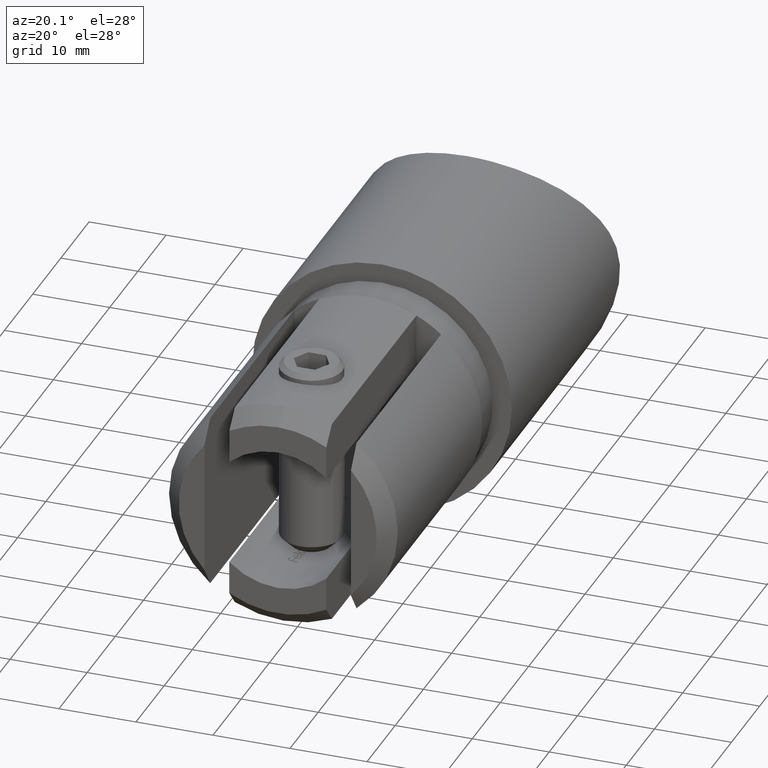
[diagram: clean part render]
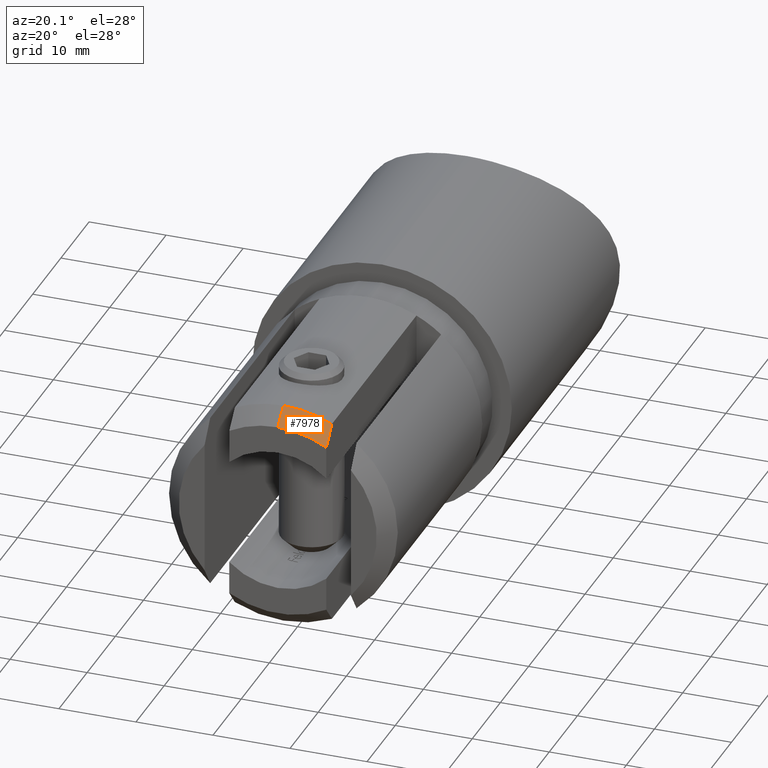
[diagram: same view with one face highlighted and labeled with its STEP entity id]
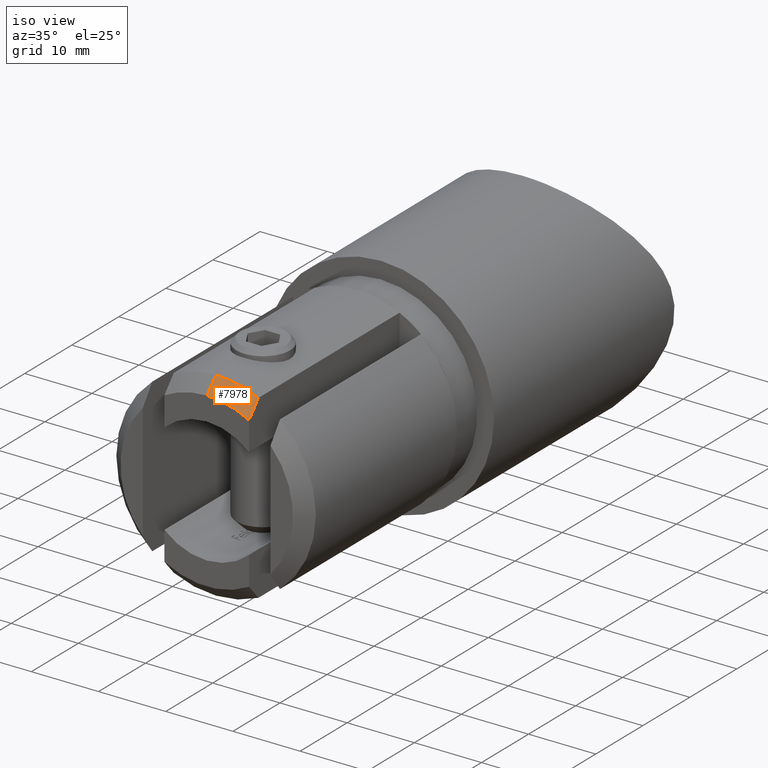
[diagram: same view with one face highlighted and labeled with its STEP entity id]
A machine part, auxiliary view. The second image highlights one B-rep face of the part: STEP entity #7978.
A second angle (iso view) of the same face is appended — the face is thin or edge-on in the first view.
In plain terms, the highlighted conical surface has half-angle 45 deg.
Its self-contained STEP definition (entity closure, byte-faithful):
#1083 = B_SPLINE_CURVE_WITH_KNOTS ( 'NONE', 3,
 ( #4109, #7334, #7241, #13936 ),
 .UNSPECIFIED., .F., .F.,
 ( 4, 4 ),
 ( 0.02580683187805100200, 0.02881553517371720700 ),
 .UNSPECIFIED. ) ;
#1609 = VERTEX_POINT ( 'NONE', #10870 ) ;
#1762 = EDGE_CURVE ( 'NONE', #1609, #7572, #7307, .T. ) ;
#2405 = DIRECTION ( 'NONE',  ( 0.0000000000000000000, 0.0000000000000000000, -1.000000000000000000 ) ) ;
#2443 = CONICAL_SURFACE ( 'NONE', #2950, 12.85000000000000000, 0.7853981633974466100 ) ;
#2950 = AXIS2_PLACEMENT_3D ( 'NONE', #3788, #8186, #6627 ) ;
#3101 = CARTESIAN_POINT ( 'NONE',  ( 0.0000000000000000000, -37.00000000000000000, 12.85000000000000000 ) ) ;
#3788 = CARTESIAN_POINT ( 'NONE',  ( 0.0000000000000000000, -37.00000000000000000, 0.0000000000000000000 ) ) ;
#4109 = CARTESIAN_POINT ( 'NONE',  ( 6.299999999999999800, -34.99999999999999300, 13.44739751773555800 ) ) ;
#4516 = CIRCLE ( 'NONE', #5070, 12.85000000000000000 ) ;
#4733 = CARTESIAN_POINT ( 'NONE',  ( 0.0000000000000000000, -37.00000000000000000, 0.0000000000000000000 ) ) ;
#5070 = AXIS2_PLACEMENT_3D ( 'NONE', #4733, #12412, #2405 ) ;
#5106 = EDGE_CURVE ( 'NONE', #7572, #10464, #1083, .T. ) ;
#5379 = ORIENTED_EDGE ( 'NONE', *, *, #5106, .F. ) ;
#5515 = ORIENTED_EDGE ( 'NONE', *, *, #1762, .F. ) ;
#5931 = EDGE_LOOP ( 'NONE', ( #11196, #12812, #5379, #5515 ) ) ;
#6014 = CARTESIAN_POINT ( 'NONE',  ( 0.0000000000000000000, -37.00000000000000000, 12.85000000000000000 ) ) ;
#6627 = DIRECTION ( 'NONE',  ( 0.0000000000000000000, 0.0000000000000000000, 1.000000000000000000 ) ) ;
#7241 = CARTESIAN_POINT ( 'NONE',  ( 6.299999999999999800, -36.34101532155754900, 11.95575501971407200 ) ) ;
#7307 = CIRCLE ( 'NONE', #8677, 14.85000000000000100 ) ;
#7334 = CARTESIAN_POINT ( 'NONE',  ( 6.299999999999999800, -35.67320264994762600, 12.70397788292981500 ) ) ;
#7572 = VERTEX_POINT ( 'NONE', #11963 ) ;
#7978 = ADVANCED_FACE ( 'NONE', ( #14121 ), #2443, .T. ) ;
#8007 = VERTEX_POINT ( 'NONE', #6014 ) ;
#8031 = CARTESIAN_POINT ( 'NONE',  ( 0.0000000000000000000, -34.99999999999999300, 0.0000000000000000000 ) ) ;
#8186 = DIRECTION ( 'NONE',  ( 0.0000000000000000000, 1.000000000000000000, 0.0000000000000000000 ) ) ;
#8677 = AXIS2_PLACEMENT_3D ( 'NONE', #8031, #10197, #11292 ) ;
#10197 = DIRECTION ( 'NONE',  ( 0.0000000000000000000, 1.000000000000000000, 0.0000000000000000000 ) ) ;
#10464 = VERTEX_POINT ( 'NONE', #12570 ) ;
#10870 = CARTESIAN_POINT ( 'NONE',  ( 0.0000000000000000000, -34.99999999999999300, 14.85000000000000100 ) ) ;
#10977 = DIRECTION ( 'NONE',  ( 0.0000000000000000000, 0.7071067811865487900, 0.7071067811865463500 ) ) ;
#11196 = ORIENTED_EDGE ( 'NONE', *, *, #11549, .F. ) ;
#11212 = VECTOR ( 'NONE', #10977, 1000.000000000000000 ) ;
#11292 = DIRECTION ( 'NONE',  ( 0.0000000000000000000, 0.0000000000000000000, -1.000000000000000000 ) ) ;
#11549 = EDGE_CURVE ( 'NONE', #8007, #1609, #13795, .T. ) ;
#11963 = CARTESIAN_POINT ( 'NONE',  ( 6.299999999999999800, -34.99999999999999300, 13.44739751773555800 ) ) ;
#12204 = EDGE_CURVE ( 'NONE', #10464, #8007, #4516, .T. ) ;
#12412 = DIRECTION ( 'NONE',  ( 0.0000000000000000000, -1.000000000000000000, 0.0000000000000000000 ) ) ;
#12570 = CARTESIAN_POINT ( 'NONE',  ( 6.299999999999999800, -37.00000000000000000, 11.19966517356657400 ) ) ;
#12812 = ORIENTED_EDGE ( 'NONE', *, *, #12204, .F. ) ;
#13795 = LINE ( 'NONE', #3101, #11212 ) ;
#13936 = CARTESIAN_POINT ( 'NONE',  ( 6.299999999999999800, -37.00000000000000000, 11.19966517356657400 ) ) ;
#14121 = FACE_OUTER_BOUND ( 'NONE', #5931, .T. ) ;